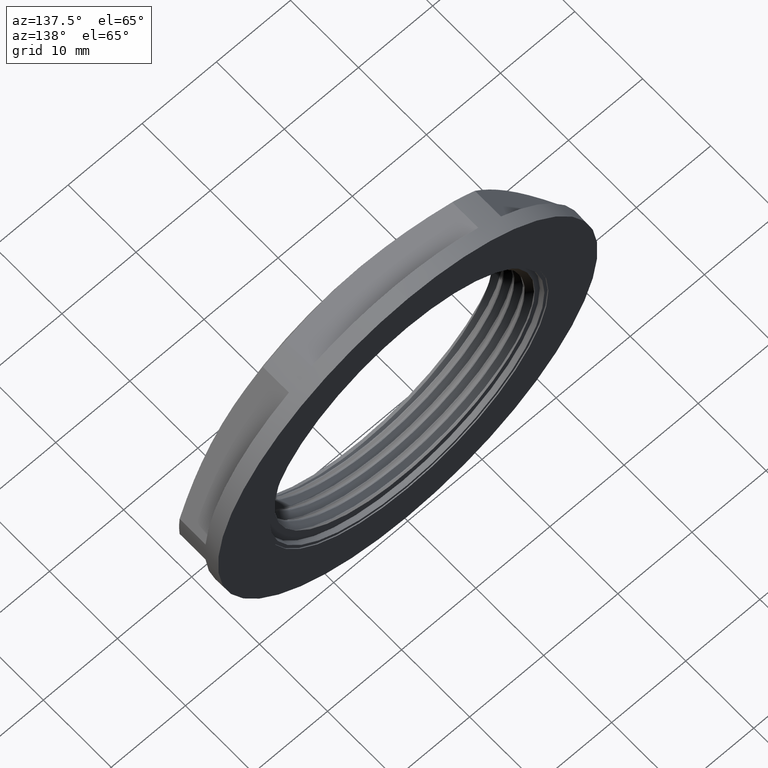
[diagram: clean part render]
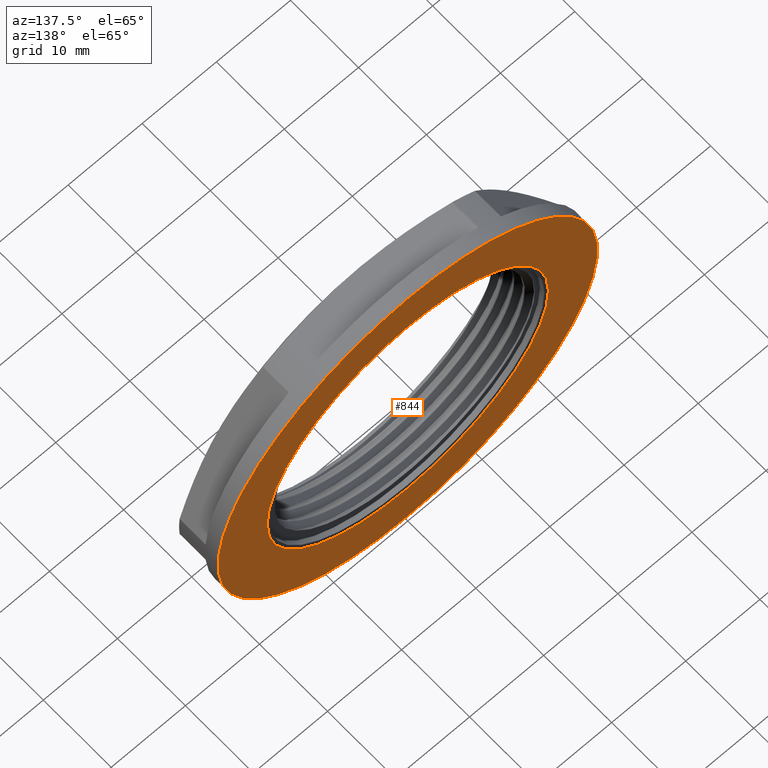
[diagram: same view with one face highlighted and labeled with its STEP entity id]
A machine part, auxiliary view. The second image highlights one B-rep face of the part: STEP entity #844.
In plain terms, the highlighted planar face has unit normal (0, -1, 0).
Its self-contained STEP definition (entity closure, byte-faithful):
#136 = AXIS2_PLACEMENT_3D ( 'NONE', #2532, #2533, #2536 ) ;
#145 = CIRCLE ( 'NONE', #154, 18.96770528361167200 ) ;
#154 = AXIS2_PLACEMENT_3D ( 'NONE', #2476, #2472, #2491 ) ;
#204 = CIRCLE ( 'NONE', #228, 25.60000000000000100 ) ;
#228 = AXIS2_PLACEMENT_3D ( 'NONE', #1365, #1359, #1360 ) ;
#229 = CIRCLE ( 'NONE', #262, 18.96770528361167200 ) ;
#238 = AXIS2_PLACEMENT_3D ( 'NONE', #1632, #1674, #1655 ) ;
#241 = CIRCLE ( 'NONE', #238, 25.60000000000000100 ) ;
#262 = AXIS2_PLACEMENT_3D ( 'NONE', #1693, #1681, #1694 ) ;
#405 = CARTESIAN_POINT ( 'NONE',  ( 0.0000000000000000000, -30.00000000000000000, 25.60000000000000100 ) ) ;
#416 = CARTESIAN_POINT ( 'NONE',  ( 3.135095805817224400E-015, -30.00000000000000000, -25.60000000000000100 ) ) ;
#421 = CARTESIAN_POINT ( 'NONE',  ( 2.322873956274537200E-015, -30.00000000000000000, -18.96770528361167200 ) ) ;
#449 = CARTESIAN_POINT ( 'NONE',  ( 0.0000000000000000000, -30.00000000000000000, 18.96770528361167200 ) ) ;
#839 = EDGE_CURVE ( 'NONE', #1088, #1117, #145, .T. ) ;
#844 = ADVANCED_FACE ( 'NONE', ( #2525, #2540 ), #2512, .F. ) ;
#912 = EDGE_CURVE ( 'NONE', #1102, #1083, #204, .T. ) ;
#950 = EDGE_CURVE ( 'NONE', #1083, #1102, #241, .T. ) ;
#957 = EDGE_CURVE ( 'NONE', #1117, #1088, #229, .T. ) ;
#1083 = VERTEX_POINT ( 'NONE', #416 ) ;
#1088 = VERTEX_POINT ( 'NONE', #421 ) ;
#1102 = VERTEX_POINT ( 'NONE', #405 ) ;
#1117 = VERTEX_POINT ( 'NONE', #449 ) ;
#1359 = DIRECTION ( 'NONE',  ( 0.0000000000000000000, 1.000000000000000000, 0.0000000000000000000 ) ) ;
#1360 = DIRECTION ( 'NONE',  ( 0.0000000000000000000, 0.0000000000000000000, 1.000000000000000000 ) ) ;
#1365 = CARTESIAN_POINT ( 'NONE',  ( 0.0000000000000000000, -30.00000000000000000, 0.0000000000000000000 ) ) ;
#1632 = CARTESIAN_POINT ( 'NONE',  ( 0.0000000000000000000, -30.00000000000000000, 0.0000000000000000000 ) ) ;
#1655 = DIRECTION ( 'NONE',  ( 0.0000000000000000000, 0.0000000000000000000, 1.000000000000000000 ) ) ;
#1674 = DIRECTION ( 'NONE',  ( 0.0000000000000000000, 1.000000000000000000, 0.0000000000000000000 ) ) ;
#1681 = DIRECTION ( 'NONE',  ( 0.0000000000000000000, 1.000000000000000000, 0.0000000000000000000 ) ) ;
#1693 = CARTESIAN_POINT ( 'NONE',  ( 0.0000000000000000000, -30.00000000000000000, 0.0000000000000000000 ) ) ;
#1694 = DIRECTION ( 'NONE',  ( 0.0000000000000000000, 0.0000000000000000000, 1.000000000000000000 ) ) ;
#2472 = DIRECTION ( 'NONE',  ( 0.0000000000000000000, 1.000000000000000000, 0.0000000000000000000 ) ) ;
#2476 = CARTESIAN_POINT ( 'NONE',  ( 0.0000000000000000000, -30.00000000000000000, 0.0000000000000000000 ) ) ;
#2491 = DIRECTION ( 'NONE',  ( 0.0000000000000000000, 0.0000000000000000000, 1.000000000000000000 ) ) ;
#2512 = PLANE ( 'NONE',  #136 ) ;
#2525 = FACE_BOUND ( 'NONE', #2590, .T. ) ;
#2532 = CARTESIAN_POINT ( 'NONE',  ( 19.25000000000000000, -30.00000000000000000, 0.0000000000000000000 ) ) ;
#2533 = DIRECTION ( 'NONE',  ( 0.0000000000000000000, -1.000000000000000000, 0.0000000000000000000 ) ) ;
#2536 = DIRECTION ( 'NONE',  ( 0.0000000000000000000, -0.0000000000000000000, -1.000000000000000000 ) ) ;
#2540 = FACE_OUTER_BOUND ( 'NONE', #2605, .T. ) ;
#2556 = ORIENTED_EDGE ( 'NONE', *, *, #839, .F. ) ;
#2557 = ORIENTED_EDGE ( 'NONE', *, *, #957, .F. ) ;
#2576 = ORIENTED_EDGE ( 'NONE', *, *, #912, .T. ) ;
#2579 = ORIENTED_EDGE ( 'NONE', *, *, #950, .T. ) ;
#2590 = EDGE_LOOP ( 'NONE', ( #2557, #2556 ) ) ;
#2605 = EDGE_LOOP ( 'NONE', ( #2576, #2579 ) ) ;